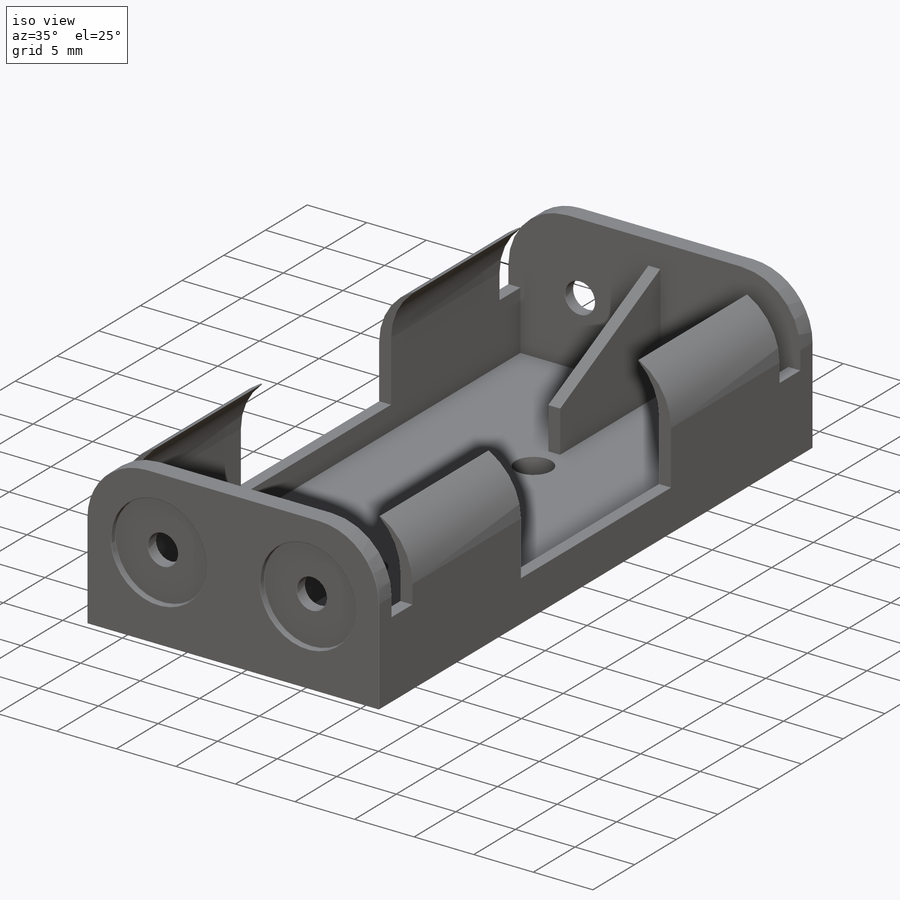
[diagram: iso view]
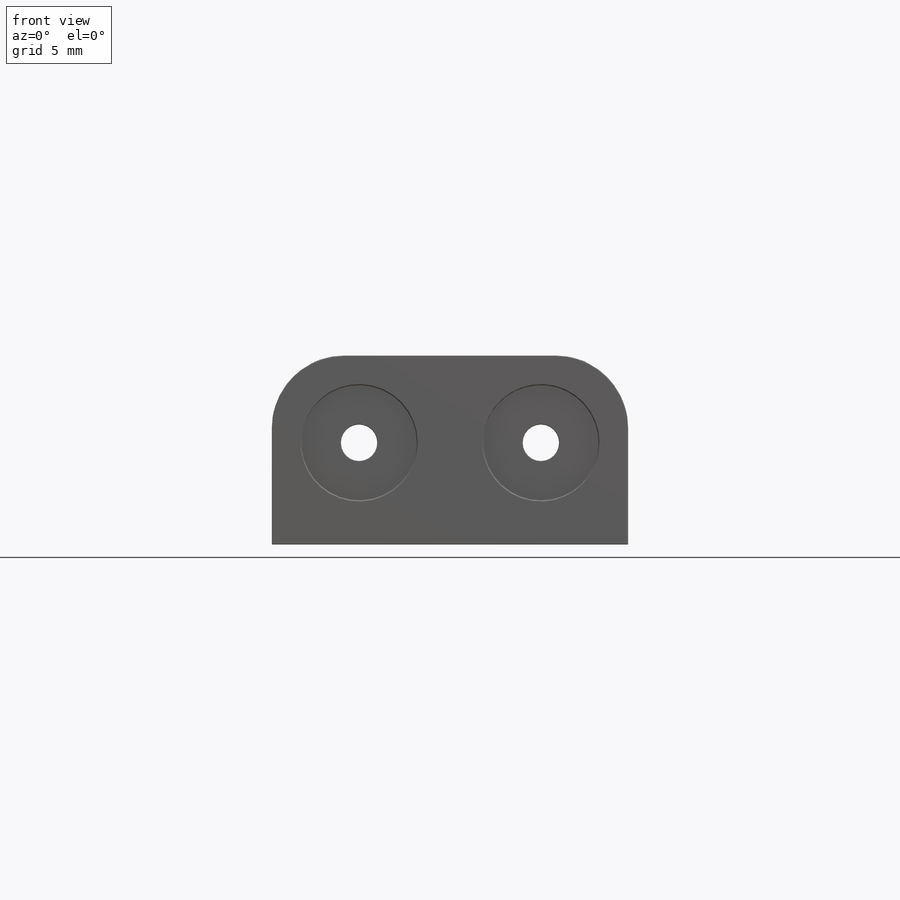
[diagram: front view]
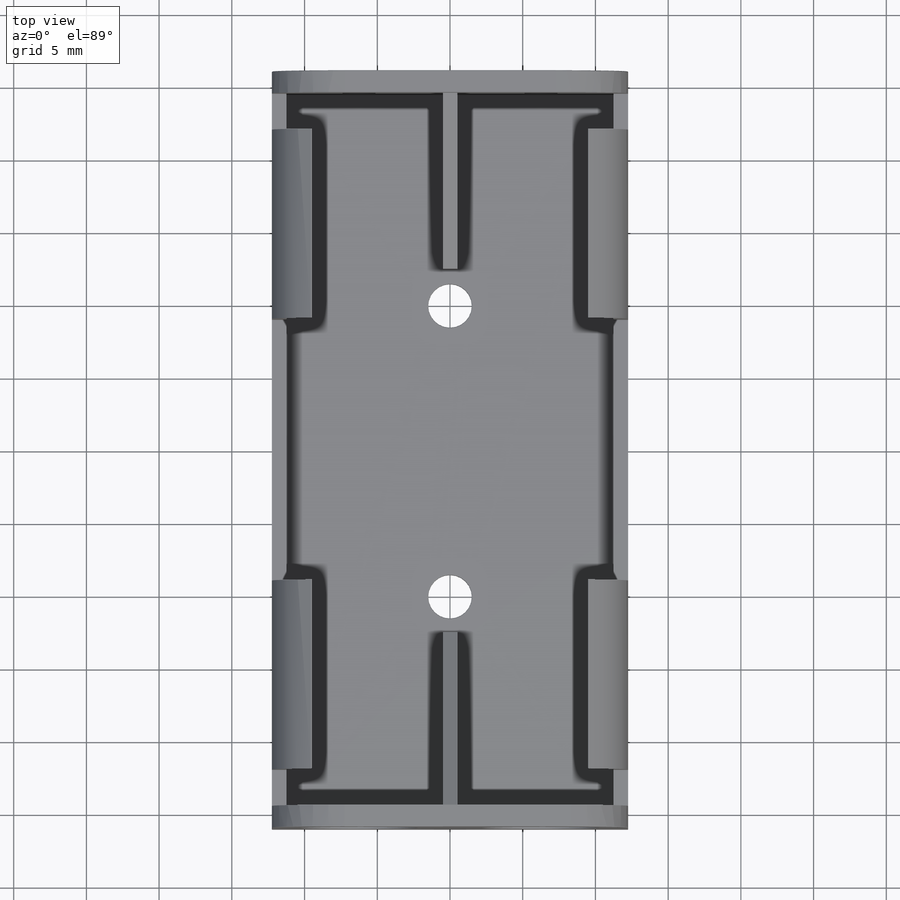
[diagram: top view]
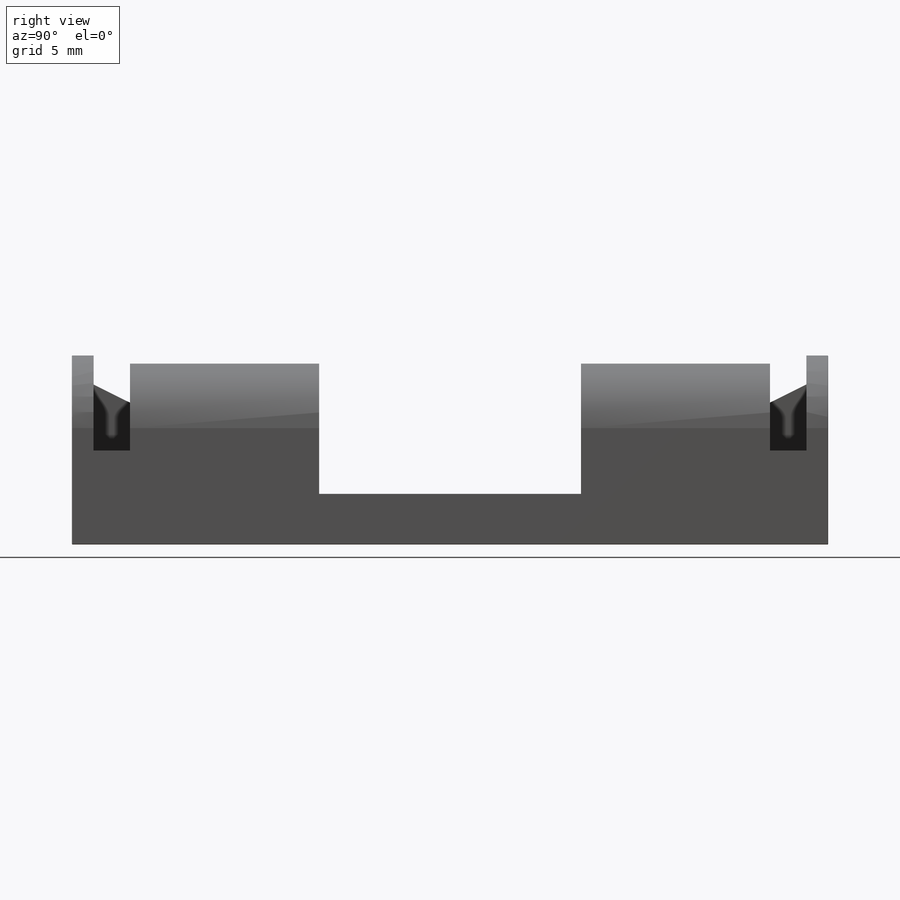
[diagram: right view]
SOLIDWORKS PART (.sldprt)
format: sldprt  version: not decoded by parser v0  size: 537,600 bytes
history: native  units: mm
features: fillet x22, sketch x6, cut_extrude x5, plane x3, mirror x2, material x1, extrude x1 + 1 further entry (+7 scaffold rows collapsed)
feature tree (48):
  scaffold x7  (default folders/planes/origin — collapsed)
  material  "Materiał <nieokreślony>"
  plane  "Przednia"
  plane  "Górna"
  plane  "Prawa"
  "Początek ukł. współrzędnych"
  sketch  "Szkic 3D1"  dims[c1.D3=5.0mm c1.D4=2.5mm c1.D1=12.25mm c1.D2=13.0mm c2.D3=~30.587157mm c3.D3=~1.956758mm c4.D3=12.25mm c5.D3=~2.591959mm c5.D4=7.0mm c5.D5=6.0mm c5.D6=6.0mm]
  extrude  "Dodanie-wyciągnięcie3"  Depth=26mm
  sketch  "Szkic 3D2"  dims[c1.D1=~3.909964mm c1.D3=10.0mm c2.D1=1.5mm c3.D1=0.5mm c4.D1=10.75mm c5.D1=~12.766044mm c6.D1=~8.012135mm c7.D1=~13.195919mm c8.D1=~3.907535mm c9.D1=~6.033587mm c10.D1=~3.477952mm c11.D1=5.75mm c11.D2=7.057mm c11.D4=~7.326972mm]
  cut_extrude  "Wytnij-wyciągnięcie1"  Depth=24.5mm
  sketch  "Szkic 3D3"  dims[c1.D1=12.5mm c2.D1=~3.366194mm c3.D1=1.5mm c4.D1=3.5mm c5.D1=~11.641948mm c6.D1=2.0mm c7.D1=~13.416408mm c8.D1=24.5mm c9.D1=~7.176328mm c10.D1=12.5mm]
  cut_extrude  "Wytnij-wyciągnięcie2"  Depth=1mm
  sketch  "Szkic 3D4"  dims[c1.D1=1.5mm c2.D1=9.0mm c3.D1=~11.485435mm c4.D1=~9.003157mm c5.D1=~2.671338mm c6.D1=~2.198236mm c7.D1=13.5mm c8.D1=~12.451395mm c9.D1=2.5mm c10.D1=~5.958993mm c11.D1=13.5mm c11.D5=13.0mm c11.D2=~0.65756mm c12.D2=2.5mm c13.D2=~12.452545mm c14.D2=2.5mm c15.D2=9.0mm c16.D2=~10.99941mm c17.D2=~6.655354mm c18.D2=~10.463337mm c19.D2=~0.751695mm c20.D2=~15.20567mm c21.D2=~3.130225mm c22.D2=13.0mm c23.D2=2.4968mm c23.D3=2.5mm c24.D3=~0.02635deg c24.D4=~0.02635deg c25.D3=7.5mm c25.D4=2.5mm c26.D4=~0.02635deg c26.D5=~0.02635deg c27.D4=7.5mm c27.D1=9.5mm c27.D5=~9.003157mm]
  cut_extrude  "Wytnij-wyciągnięcie3"  Depth=5mm
  mirror  "Lustro1"
  sketch  "Szkic 3D5"  dims[c1.D2=3.0mm c1.D1=10.0mm c2.D1=~1.05155mm c3.D1=10.0mm c3.D2=~4.49734mm c4.D2=~1.206315mm]
  cut_extrude  "Wytnij-wyciągnięcie4"  Depth=5mm
  sketch  "Szkic 3D6"  dims[c1.D1=8.0mm c2.D1=8.0mm]
  cut_extrude  "Wytnij-wyciągnięcie5"  Depth=0.5mm
  mirror  "Lustro2"
  fillet  "Zaokrąglenie1"  Radius=0.05mm
  fillet  "Zaokrąglenie2"  Radius=0.05mm
  fillet  "Zaokrąglenie3"  Radius=0.05mm
  fillet  "Zaokrąglenie4"  Radius=0.05mm
  fillet  "Zaokrąglenie5"  Radius=0.05mm
  fillet  "Zaokrąglenie6"  Radius=0.05mm
  fillet  "Zaokrąglenie7"  Radius=0.05mm
  fillet  "Zaokrąglenie8"  Radius=0.05mm
  fillet  "Zaokrąglenie9"  Radius=0.05mm
  fillet  "Zaokrąglenie10"  Radius=0.05mm
  fillet  "Zaokrąglenie11"  Radius=0.05mm
  fillet  "Zaokrąglenie12"  Radius=0.05mm
  fillet  "Zaokrąglenie13"  Radius=0.05mm
  fillet  "Zaokrąglenie14"  Radius=0.05mm
  fillet  "Zaokrąglenie15"  Radius=0.05mm
  fillet  "Zaokrąglenie16"  Radius=0.05mm
  fillet  "Zaokrąglenie17"  Radius=0.05mm
  fillet  "Zaokrąglenie18"  Radius=0.05mm
  fillet  "Zaokrąglenie19"  Radius=0.05mm
  fillet  "Zaokrąglenie20"  Radius=0.05mm
  fillet  "Zaokrąglenie21"  Radius=0.05mm
  fillet  "Zaokrąglenie26"  Radius=0.05mm
decode coverage: 34 of 36 modeling features carry decoded parameters; 1 rows unclassified (native names shown)
note: ~ marks probable driven/reference dimensions
note: suppression state not decoded; provenance and decode notes live in map.json
